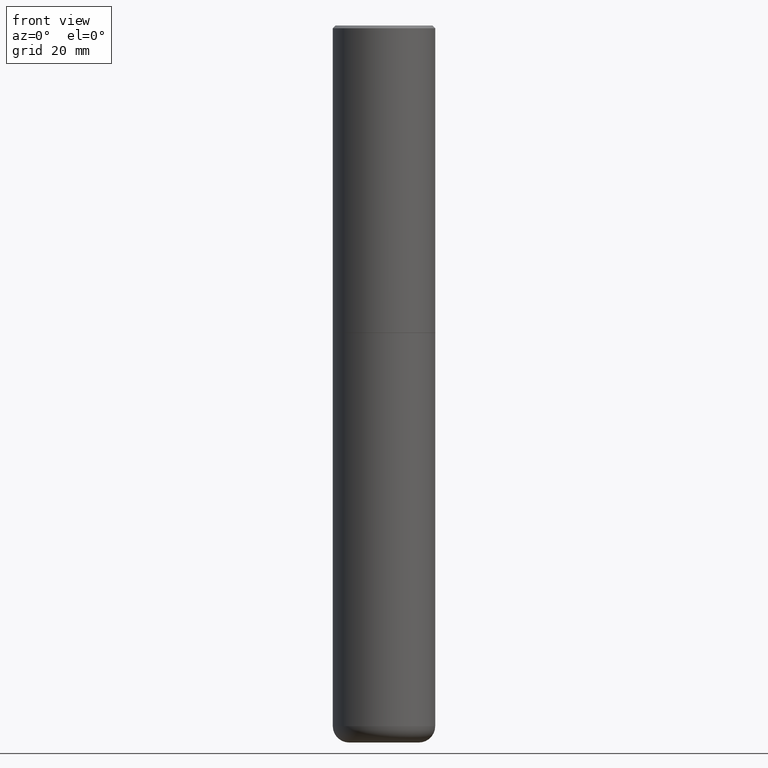
[diagram: clean part render]
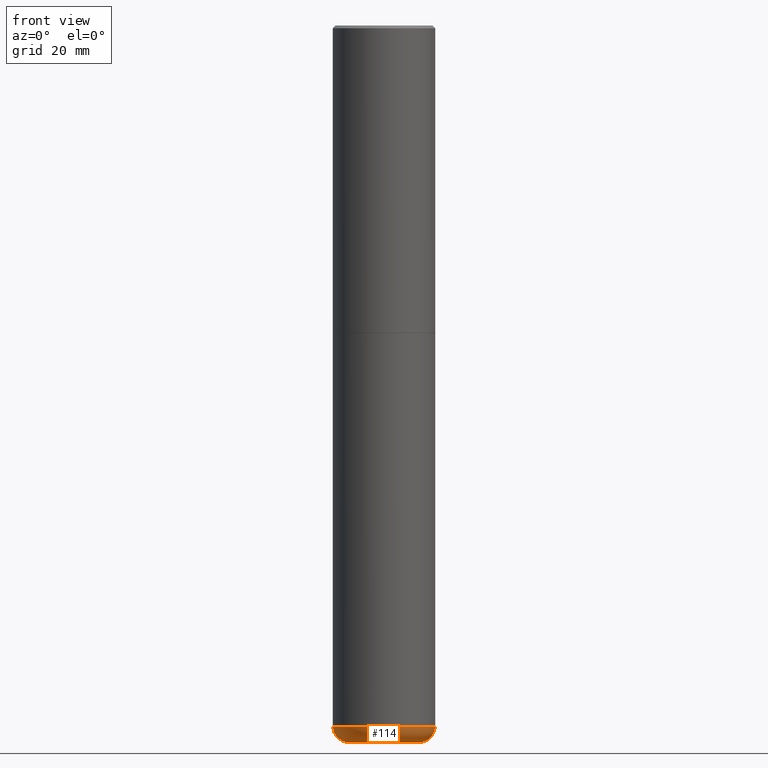
[diagram: same view with one face highlighted and labeled with its STEP entity id]
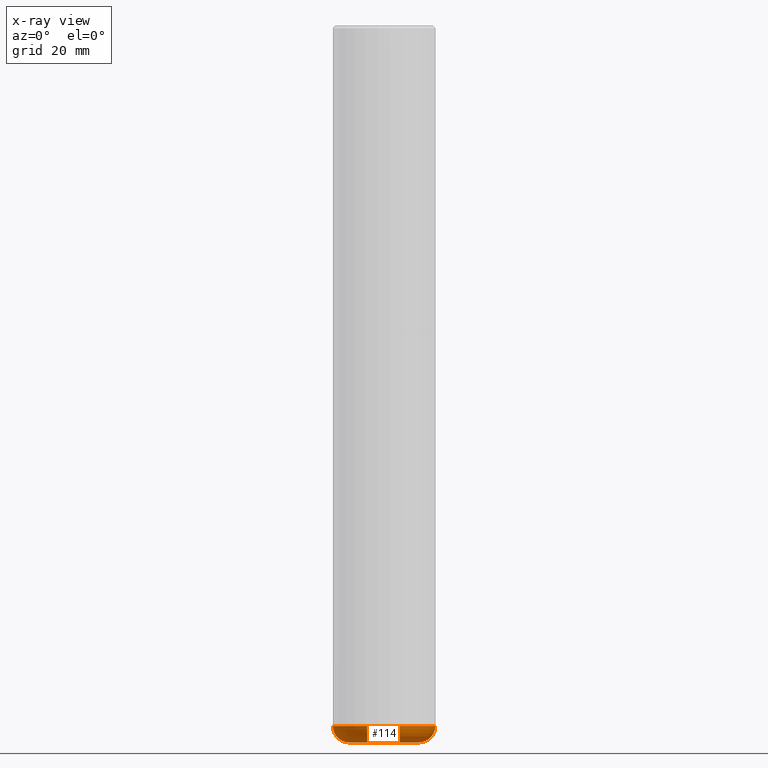
[diagram: x-ray of the same camera — body ghosted, the highlighted face saturated]
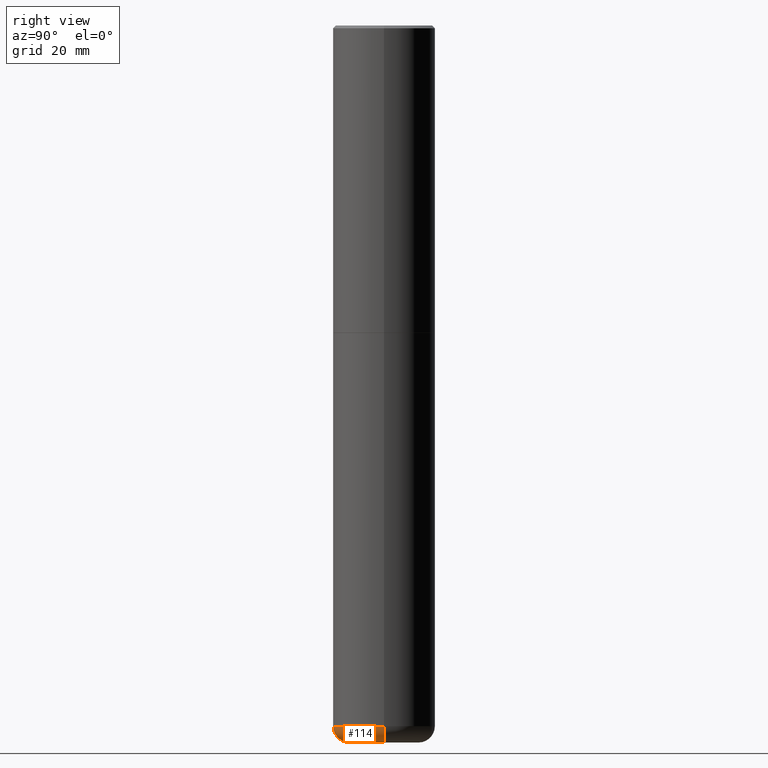
[diagram: same view with one face highlighted and labeled with its STEP entity id]
A machine part, front view. The second image highlights one B-rep face of the part: STEP entity #114.
The next image is the same camera in x-ray: the body ghosted, the highlighted face saturated — about 0% of this face is hidden behind the body in this view.
A second angle (right view) of the same face is appended — the face is thin or edge-on in the first view.
In plain terms, the highlighted toroidal blend (fillet) surface has major radius 6.477 mm and minor (blend) radius 3.048 mm.
Its self-contained STEP definition (entity closure, byte-faithful):
#1 = EDGE_LOOP ( 'NONE', ( #236, #32, #268, #145 ) ) ;
#13 = CARTESIAN_POINT ( 'NONE',  ( 0.2550000000000000044, -2.011093251173650682E-14, -5.249999999999999112 ) ) ;
#15 = DIRECTION ( 'NONE',  ( -2.445468806185136597E-29, 3.491481338843145583E-15, 1.000000000000000000 ) ) ;
#23 = AXIS2_PLACEMENT_3D ( 'NONE', #158, #392, #100 ) ;
#32 = ORIENTED_EDGE ( 'NONE', *, *, #95, .T. ) ;
#45 = EDGE_CURVE ( 'NONE', #359, #330, #91, .T. ) ;
#55 = AXIS2_PLACEMENT_3D ( 'NONE', #77, #15, #212 ) ;
#58 = DIRECTION ( 'NONE',  ( -2.445468806185136597E-29, 3.491481338843145583E-15, 1.000000000000000000 ) ) ;
#77 = CARTESIAN_POINT ( 'NONE',  ( 1.254525497572975083E-28, -1.791129926826533659E-14, -5.129999999999999893 ) ) ;
#91 = CIRCLE ( 'NONE', #55, 0.3750000000000000555 ) ;
#95 = EDGE_CURVE ( 'NONE', #332, #373, #274, .T. ) ;
#100 = DIRECTION ( 'NONE',  ( -1.000000000000000000, 7.105427357600993970E-15, 0.000000000000000000 ) ) ;
#114 = ADVANCED_FACE ( 'NONE', ( #385 ), #276, .T. ) ;
#139 = AXIS2_PLACEMENT_3D ( 'NONE', #289, #58, #414 ) ;
#145 = ORIENTED_EDGE ( 'NONE', *, *, #45, .F. ) ;
#148 = DIRECTION ( 'NONE',  ( -2.445468806185136597E-29, 3.491481338843145583E-15, 1.000000000000000000 ) ) ;
#158 = CARTESIAN_POINT ( 'NONE',  ( -0.2550000000000000044, -1.609941529207708187E-14, -5.129999999999999893 ) ) ;
#168 = CARTESIAN_POINT ( 'NONE',  ( -0.3749999999999996669, -1.524676400916496405E-14, -5.129999999999999893 ) ) ;
#180 = AXIS2_PLACEMENT_3D ( 'NONE', #259, #148, #219 ) ;
#199 = CARTESIAN_POINT ( 'NONE',  ( 0.3749999999999996669, -2.052991027239768345E-14, -5.129999999999999893 ) ) ;
#205 = AXIS2_PLACEMENT_3D ( 'NONE', #230, #323, #294 ) ;
#211 = CIRCLE ( 'NONE', #23, 0.1199999999999993988 ) ;
#212 = DIRECTION ( 'NONE',  ( 1.000000000000000000, -6.982962677686261189E-15, 0.000000000000000000 ) ) ;
#219 = DIRECTION ( 'NONE',  ( 1.000000000000000000, -6.982962677686263555E-15, 4.883557194083111219E-29 ) ) ;
#230 = CARTESIAN_POINT ( 'NONE',  ( 0.2550000000000000044, -1.969195475107533334E-14, -5.129999999999999893 ) ) ;
#236 = ORIENTED_EDGE ( 'NONE', *, *, #336, .F. ) ;
#259 = CARTESIAN_POINT ( 'NONE',  ( 1.254525497572975083E-28, -1.791129926826533659E-14, -5.129999999999999893 ) ) ;
#268 = ORIENTED_EDGE ( 'NONE', *, *, #351, .T. ) ;
#274 = CIRCLE ( 'NONE', #139, 0.2550000000000000044 ) ;
#276 = TOROIDAL_SURFACE ( 'NONE', #180, 0.2550000000000000044, 0.1199999999999993711 ) ;
#289 = CARTESIAN_POINT ( 'NONE',  ( 1.283871123247196489E-28, -1.833027702892651007E-14, -5.249999999999999112 ) ) ;
#292 = CIRCLE ( 'NONE', #205, 0.1199999999999993988 ) ;
#294 = DIRECTION ( 'NONE',  ( 1.000000000000000000, -6.982962677686271444E-15, 0.000000000000000000 ) ) ;
#323 = DIRECTION ( 'NONE',  ( -6.982962677686266711E-15, -1.000000000000000000, 3.491481338843145583E-15 ) ) ;
#330 = VERTEX_POINT ( 'NONE', #199 ) ;
#332 = VERTEX_POINT ( 'NONE', #363 ) ;
#336 = EDGE_CURVE ( 'NONE', #332, #359, #211, .T. ) ;
#351 = EDGE_CURVE ( 'NONE', #373, #330, #292, .T. ) ;
#359 = VERTEX_POINT ( 'NONE', #168 ) ;
#363 = CARTESIAN_POINT ( 'NONE',  ( -0.2550000000000000044, -1.588257853095161128E-14, -5.249999999999999112 ) ) ;
#373 = VERTEX_POINT ( 'NONE', #13 ) ;
#385 = FACE_OUTER_BOUND ( 'NONE', #1, .T. ) ;
#392 = DIRECTION ( 'NONE',  ( 7.105427357601001859E-15, 1.000000000000000000, -3.491481338843145583E-15 ) ) ;
#414 = DIRECTION ( 'NONE',  ( 1.000000000000000000, -6.982962677686260400E-15, 0.000000000000000000 ) ) ;